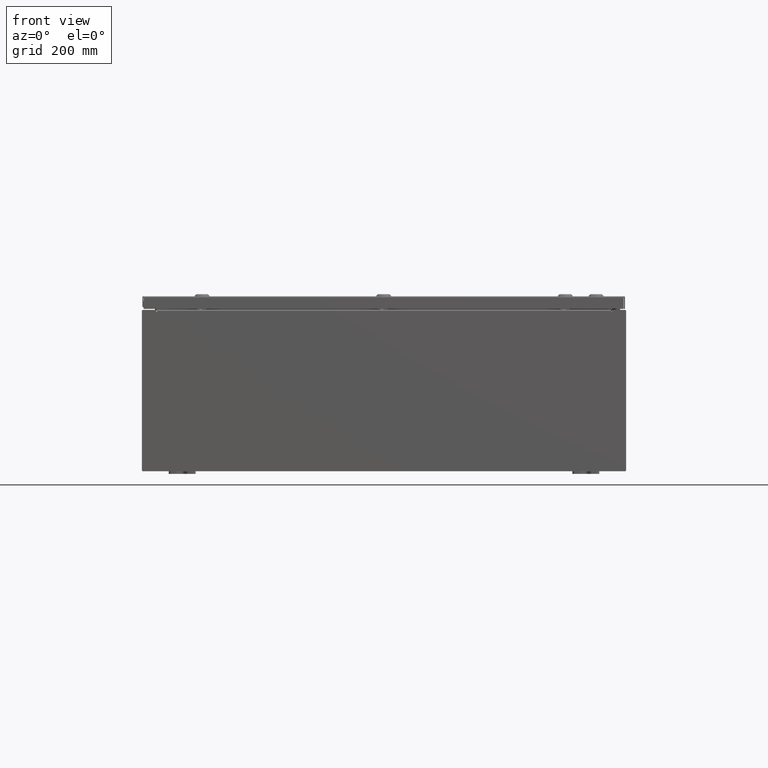
[diagram: clean part render]
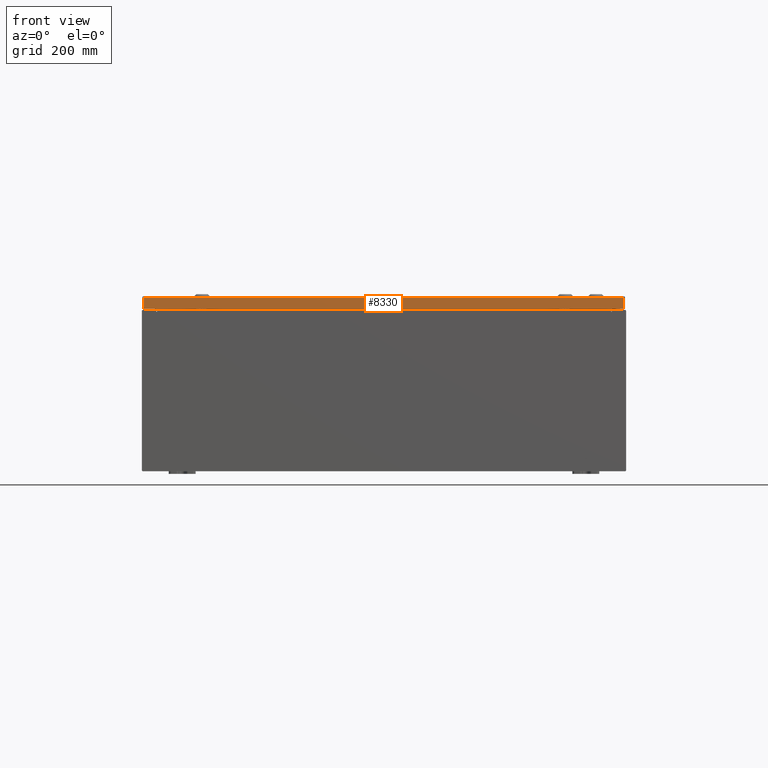
[diagram: same view with one face highlighted and labeled with its STEP entity id]
A machine part, front view. The second image highlights one B-rep face of the part: STEP entity #8330.
In plain terms, the highlighted planar face has unit normal (-0, 1, -0).
Its self-contained STEP definition (entity closure, byte-faithful):
#3745 = CARTESIAN_POINT ( 'NONE',  ( 17.93750000000000000, -17.93750000000000000, -0.9376999999999997600 ) ) ;
#3897 = ORIENTED_EDGE ( 'NONE', *, *, #9953, .F. ) ;
#4102 = CARTESIAN_POINT ( 'NONE',  ( 17.84865786437626800, -17.93750000000000000, -0.9376999999999997600 ) ) ;
#5748 = PLANE ( 'NONE',  #17582 ) ;
#7980 = CARTESIAN_POINT ( 'NONE',  ( 17.84865786437626800, -17.93750000000000000, -0.08770000000000008300 ) ) ;
#8330 = ADVANCED_FACE ( 'NONE', ( #53760 ), #5748, .F. ) ;
#9953 = EDGE_CURVE ( 'NONE', #18645, #16876, #60203, .T. ) ;
#13716 = CARTESIAN_POINT ( 'NONE',  ( -17.84865786437626800, -17.93750000000000000, -0.9376999999999954300 ) ) ;
#14569 = VECTOR ( 'NONE', #47075, 39.37007874015748100 ) ;
#15035 = ORIENTED_EDGE ( 'NONE', *, *, #45750, .F. ) ;
#16338 = ORIENTED_EDGE ( 'NONE', *, *, #34806, .F. ) ;
#16369 = DIRECTION ( 'NONE',  ( 0.0000000000000000000, 2.532419924601866100E-015, 1.000000000000000000 ) ) ;
#16876 = VERTEX_POINT ( 'NONE', #4102 ) ;
#17582 = AXIS2_PLACEMENT_3D ( 'NONE', #42828, #48179, #16369 ) ;
#18645 = VERTEX_POINT ( 'NONE', #7980 ) ;
#19207 = VERTEX_POINT ( 'NONE', #48751 ) ;
#21803 = EDGE_LOOP ( 'NONE', ( #16338, #28924, #15035, #3897 ) ) ;
#22501 = LINE ( 'NONE', #3745, #50737 ) ;
#25527 = VERTEX_POINT ( 'NONE', #13716 ) ;
#27023 = CARTESIAN_POINT ( 'NONE',  ( 17.84865786437626800, -17.93750000000000000, -0.07469999999999980800 ) ) ;
#28924 = ORIENTED_EDGE ( 'NONE', *, *, #68228, .T. ) ;
#32000 = VECTOR ( 'NONE', #63837, 39.37007874015748100 ) ;
#34806 = EDGE_CURVE ( 'NONE', #19207, #18645, #49714, .T. ) ;
#35541 = VECTOR ( 'NONE', #47501, 39.37007874015748100 ) ;
#42817 = LINE ( 'NONE', #57683, #14569 ) ;
#42828 = CARTESIAN_POINT ( 'NONE',  ( 5.534549032111210700E-030, -17.93750000000000000, 4.568609605355755400E-014 ) ) ;
#45750 = EDGE_CURVE ( 'NONE', #16876, #25527, #22501, .T. ) ;
#47075 = DIRECTION ( 'NONE',  ( 0.0000000000000000000, -2.532419924601866100E-015, -1.000000000000000000 ) ) ;
#47501 = DIRECTION ( 'NONE',  ( 1.000000000000000000, 3.085462875044577900E-031, -7.725144347791936500E-046 ) ) ;
#48179 = DIRECTION ( 'NONE',  ( -3.085462875044577500E-031, 1.000000000000000000, -2.532419924601866100E-015 ) ) ;
#48751 = CARTESIAN_POINT ( 'NONE',  ( -17.84865786437626800, -17.93750000000000000, -0.08770000000000008300 ) ) ;
#49714 = LINE ( 'NONE', #63188, #35541 ) ;
#50737 = VECTOR ( 'NONE', #56580, 39.37007874015748100 ) ;
#53760 = FACE_OUTER_BOUND ( 'NONE', #21803, .T. ) ;
#56580 = DIRECTION ( 'NONE',  ( -1.000000000000000000, -4.379057701015054300E-047, 1.218385167906012900E-016 ) ) ;
#57683 = CARTESIAN_POINT ( 'NONE',  ( -17.84865786437626800, -17.93750000000000000, 4.568609605355755400E-014 ) ) ;
#60203 = LINE ( 'NONE', #27023, #32000 ) ;
#63188 = CARTESIAN_POINT ( 'NONE',  ( 17.93750000000000000, -17.93750000000000000, -0.08770000000000008300 ) ) ;
#63837 = DIRECTION ( 'NONE',  ( -0.0000000000000000000, -2.532419924601866100E-015, -1.000000000000000000 ) ) ;
#68228 = EDGE_CURVE ( 'NONE', #19207, #25527, #42817, .T. ) ;